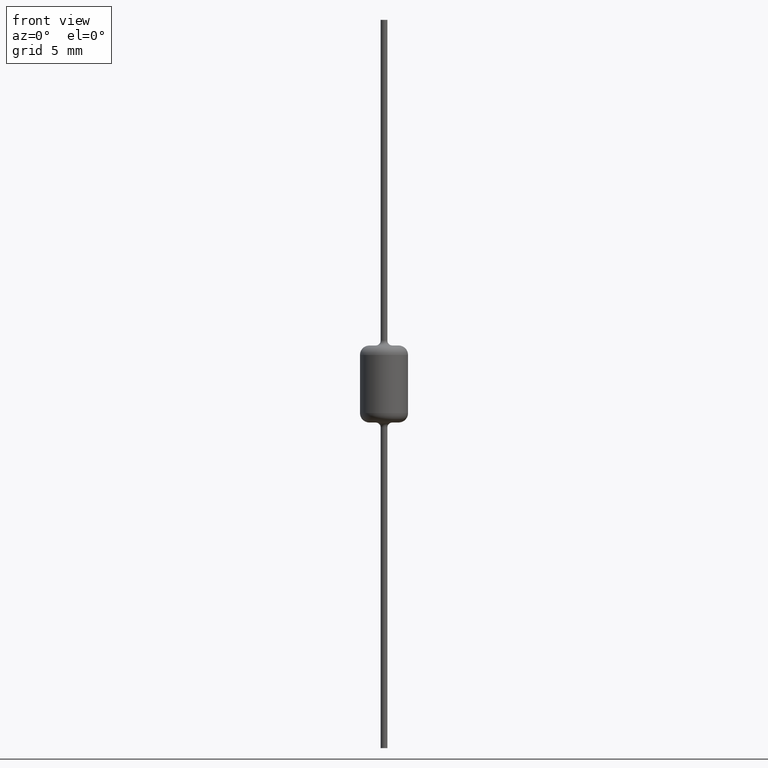
[diagram: clean part render]
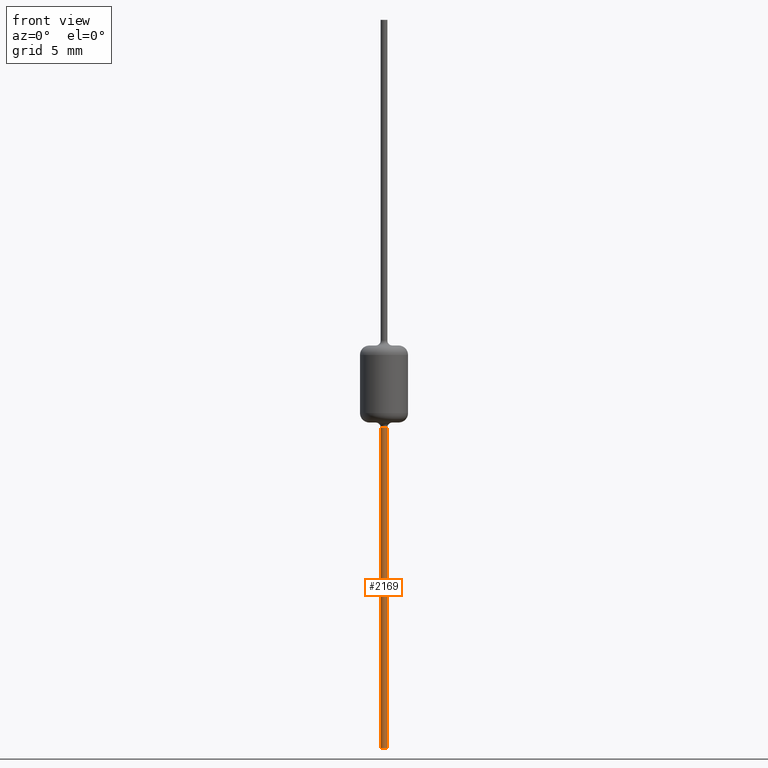
[diagram: same view with one face highlighted and labeled with its STEP entity id]
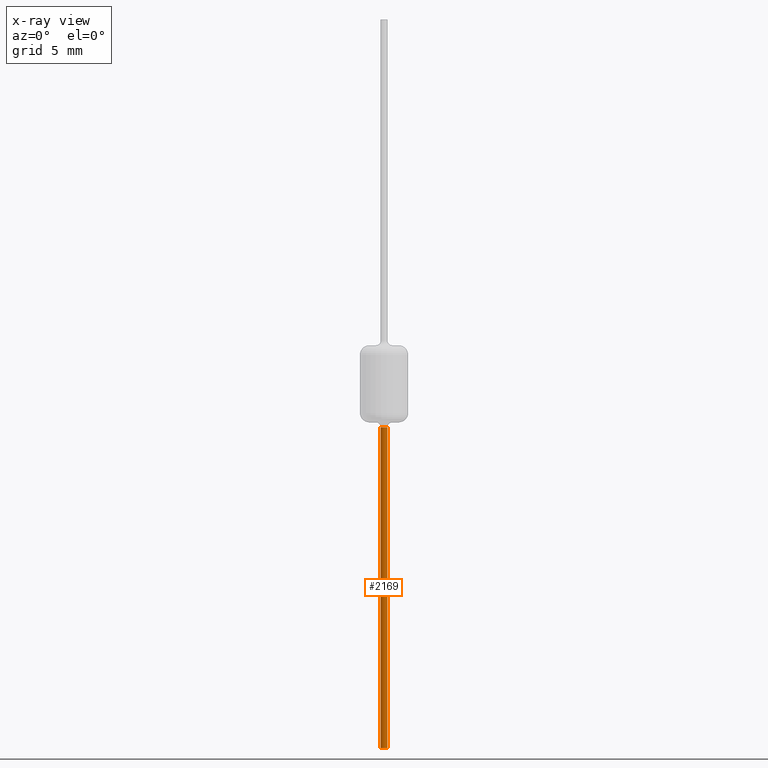
[diagram: x-ray of the same camera — body ghosted, the highlighted face saturated]
A machine part, front view. The second image highlights one B-rep face of the part: STEP entity #2169.
The next image is the same camera in x-ray: the body ghosted, the highlighted face saturated — about 0% of this face is hidden behind the body in this view.
In plain terms, the highlighted cylindrical surface (edge-blend (fillet) strip) has radius 0.2675 mm, axis along (0, 0, -1).
Its self-contained STEP definition (entity closure, byte-faithful):
#50 = DIRECTION ( 'NONE',  ( 0.0000000000000000000, 0.0000000000000000000, -1.000000000000000000 ) ) ;
#72 = ORIENTED_EDGE ( 'NONE', *, *, #1378, .F. ) ;
#150 = DIRECTION ( 'NONE',  ( 0.0000000000000000000, 0.0000000000000000000, -1.000000000000000000 ) ) ;
#162 = ORIENTED_EDGE ( 'NONE', *, *, #2832, .T. ) ;
#288 = CARTESIAN_POINT ( 'NONE',  ( 0.0000000000000000000, 0.0000000000000000000, 28.83100000000000000 ) ) ;
#472 = VECTOR ( 'NONE', #3190, 1000.000000000000000 ) ;
#499 = CARTESIAN_POINT ( 'NONE',  ( 0.0000000000000000000, 0.0000000000000000000, -3.430999999999999600 ) ) ;
#641 = VERTEX_POINT ( 'NONE', #1806 ) ;
#887 = ORIENTED_EDGE ( 'NONE', *, *, #1746, .T. ) ;
#939 = FACE_OUTER_BOUND ( 'NONE', #2303, .T. ) ;
#1031 = DIRECTION ( 'NONE',  ( -1.000000000000000000, 0.0000000000000000000, 0.0000000000000000000 ) ) ;
#1061 = DIRECTION ( 'NONE',  ( 0.0000000000000000000, 0.0000000000000000000, -1.000000000000000000 ) ) ;
#1296 = AXIS2_PLACEMENT_3D ( 'NONE', #288, #150, #2292 ) ;
#1328 = VECTOR ( 'NONE', #1061, 1000.000000000000000 ) ;
#1378 = EDGE_CURVE ( 'NONE', #641, #1455, #2478, .T. ) ;
#1435 = AXIS2_PLACEMENT_3D ( 'NONE', #499, #2370, #1031 ) ;
#1455 = VERTEX_POINT ( 'NONE', #2995 ) ;
#1544 = EDGE_CURVE ( 'NONE', #1455, #1914, #2647, .T. ) ;
#1566 = CARTESIAN_POINT ( 'NONE',  ( -0.2675000000000000200, 0.0000000000000000000, 28.83100000000000000 ) ) ;
#1746 = EDGE_CURVE ( 'NONE', #641, #2517, #1923, .T. ) ;
#1806 = CARTESIAN_POINT ( 'NONE',  ( 0.2675000000000000200, 0.0000000000000000000, -3.430999999999999600 ) ) ;
#1914 = VERTEX_POINT ( 'NONE', #1953 ) ;
#1923 = CIRCLE ( 'NONE', #1435, 0.2675000000000000200 ) ;
#1953 = CARTESIAN_POINT ( 'NONE',  ( -0.2675000000000000200, 0.0000000000000000000, -28.83100000000000000 ) ) ;
#2169 = ADVANCED_FACE ( 'NONE', ( #939 ), #2891, .T. ) ;
#2292 = DIRECTION ( 'NONE',  ( -1.000000000000000000, 0.0000000000000000000, 0.0000000000000000000 ) ) ;
#2303 = EDGE_LOOP ( 'NONE', ( #72, #887, #162, #2734 ) ) ;
#2322 = LINE ( 'NONE', #1566, #472 ) ;
#2370 = DIRECTION ( 'NONE',  ( 0.0000000000000000000, 0.0000000000000000000, -1.000000000000000000 ) ) ;
#2402 = CARTESIAN_POINT ( 'NONE',  ( 0.2675000000000000200, 3.275930187719170000E-017, 28.83100000000000000 ) ) ;
#2478 = LINE ( 'NONE', #2402, #1328 ) ;
#2517 = VERTEX_POINT ( 'NONE', #3023 ) ;
#2647 = CIRCLE ( 'NONE', #2774, 0.2675000000000000200 ) ;
#2734 = ORIENTED_EDGE ( 'NONE', *, *, #1544, .F. ) ;
#2771 = CARTESIAN_POINT ( 'NONE',  ( 0.0000000000000000000, 0.0000000000000000000, -28.83100000000000000 ) ) ;
#2774 = AXIS2_PLACEMENT_3D ( 'NONE', #2771, #50, #2785 ) ;
#2785 = DIRECTION ( 'NONE',  ( -1.000000000000000000, 0.0000000000000000000, 0.0000000000000000000 ) ) ;
#2832 = EDGE_CURVE ( 'NONE', #2517, #1914, #2322, .T. ) ;
#2891 = CYLINDRICAL_SURFACE ( 'NONE', #1296, 0.2675000000000000200 ) ;
#2995 = CARTESIAN_POINT ( 'NONE',  ( 0.2675000000000000200, 3.275930187719170000E-017, -28.83100000000000000 ) ) ;
#3023 = CARTESIAN_POINT ( 'NONE',  ( -0.2675000000000000200, 5.608882340094877600E-017, -3.430999999999999600 ) ) ;
#3190 = DIRECTION ( 'NONE',  ( 0.0000000000000000000, 0.0000000000000000000, -1.000000000000000000 ) ) ;